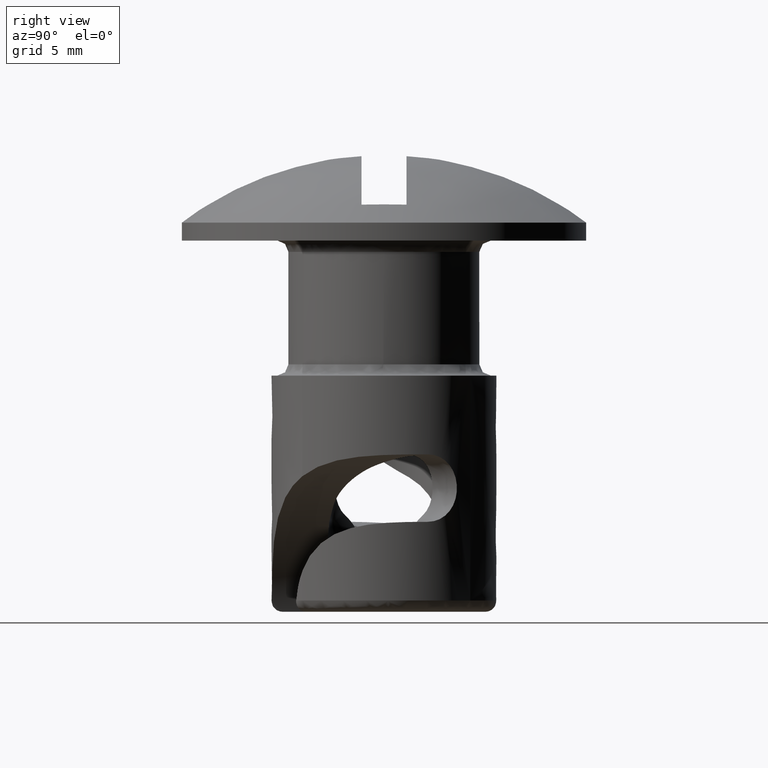
[diagram: clean part render]
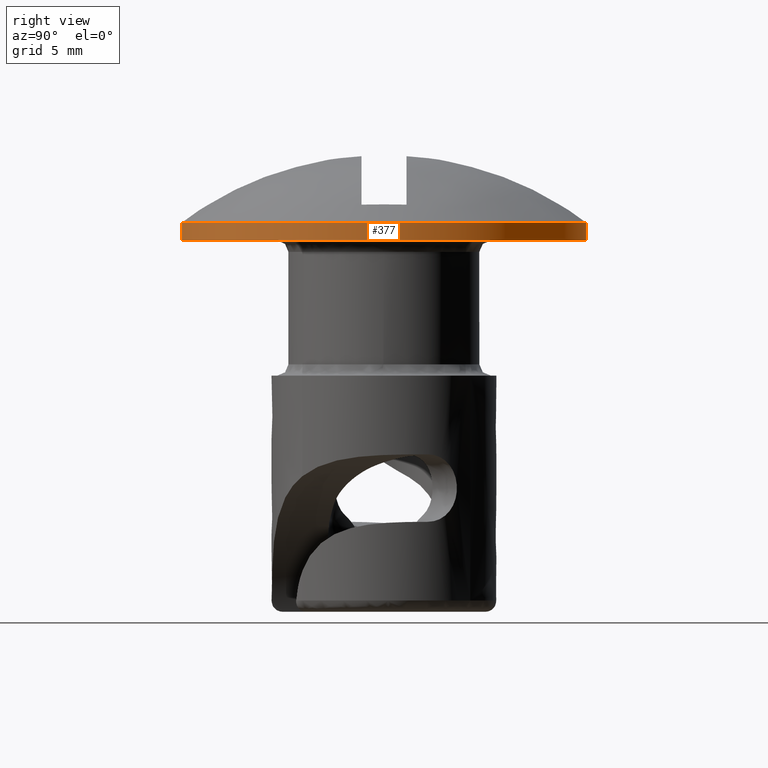
[diagram: same view with one face highlighted and labeled with its STEP entity id]
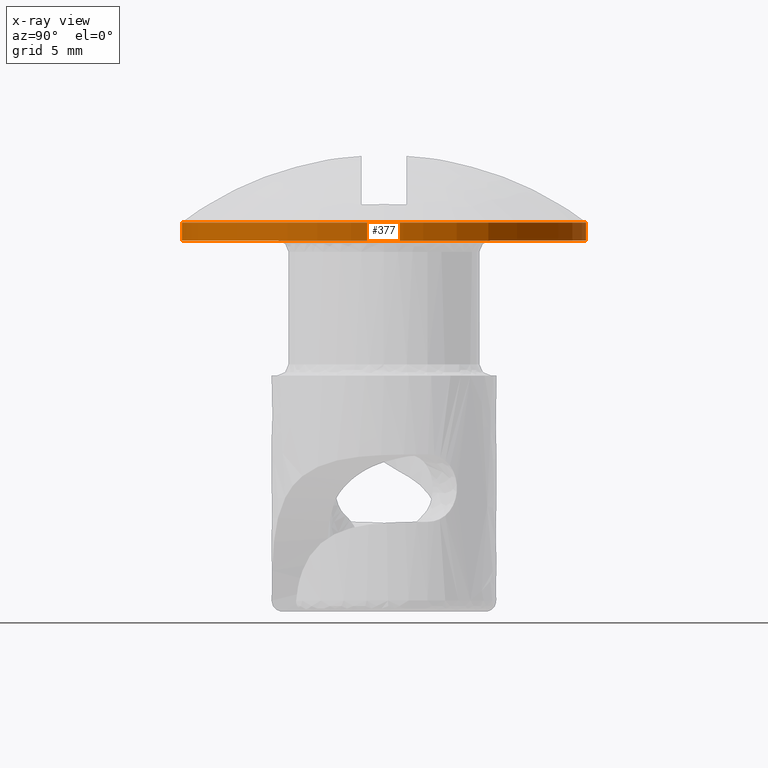
[diagram: x-ray of the same camera — body ghosted, the highlighted face saturated]
A machine part, right view. The second image highlights one B-rep face of the part: STEP entity #377.
The next image is the same camera in x-ray: the body ghosted, the highlighted face saturated — about 0% of this face is hidden behind the body in this view.
In plain terms, the highlighted face is a freeform B-spline surface patch.
Its self-contained STEP definition (entity closure, byte-faithful):
#275=CARTESIAN_POINT('',(-1.062308111910826,8.937085737272998,0.820003075000106));
#276=CARTESIAN_POINT('',(-0.806532557741799,8.967488539037451,0.820003075000106));
#277=CARTESIAN_POINT('',(-0.549436855813713,8.983213185796799,0.820003075000106));
#278=CARTESIAN_POINT('',(8.433776329983086,9.532650041610513,0.820003075000106));
#279=CARTESIAN_POINT('',(8.983213185796799,0.549436855813713,0.820003075000106));
#280=CARTESIAN_POINT('',(9.532650041610513,-8.433776329983086,0.820003075000106));
#281=CARTESIAN_POINT('',(0.549436855813713,-8.983213185796799,0.820003075000106));
#282=CARTESIAN_POINT('',(-1.062308111910826,8.937085737272998,-0.020500076875003));
#283=CARTESIAN_POINT('',(-0.806532557741799,8.967488539037451,-0.020500076875003));
#284=CARTESIAN_POINT('',(-0.549436855813713,8.983213185796799,-0.020500076875003));
#285=CARTESIAN_POINT('',(8.433776329983086,9.532650041610513,-0.020500076875003));
#286=CARTESIAN_POINT('',(8.983213185796799,0.549436855813713,-0.020500076875003));
#287=CARTESIAN_POINT('',(9.532650041610513,-8.433776329983086,-0.020500076875003));
#288=CARTESIAN_POINT('',(0.549436855813713,-8.983213185796799,-0.020500076875003));
#296=(BOUNDED_SURFACE()B_SPLINE_SURFACE(2,1,((#275,#282),(#276,#283),(#277,#284),(#278,#285),(#279,#286),(#280,#287),(#281,#288)),.UNSPECIFIED.,.F.,.F.,.U.)B_SPLINE_SURFACE_WITH_KNOTS((3,2,2,3),(2,2),(0.0,0.596467529817257,15.508155775248680,30.419844020680092),(0.0,1.0),.UNSPECIFIED.)GEOMETRIC_REPRESENTATION_ITEM()RATIONAL_B_SPLINE_SURFACE(((0.977505800795127,0.977505800795127),(0.988284271247462,0.988284271247462),(1.0,1.0),(0.707106781186548,0.707106781186548),(1.0,1.0),(0.707106781186548,0.707106781186548),(1.0,1.0)))REPRESENTATION_ITEM('')SURFACE());
#297=CARTESIAN_POINT('',(-1.062301609337486,8.937086510197609,-8.314378E-014));
#298=VERTEX_POINT('',#297);
#299=CARTESIAN_POINT('',(9.0,0.0,0.0));
#300=VERTEX_POINT('',#299);
#301=CARTESIAN_POINT('',(-1.062301609337486,8.937086510197608,-8.314378E-014));
#302=CARTESIAN_POINT('',(-0.533013791208688,9.000000000000002,0.0));
#303=CARTESIAN_POINT('',(0.0,9.0,0.0));
#304=CARTESIAN_POINT('',(9.0,9.0,0.0));
#305=CARTESIAN_POINT('',(9.0,0.0,0.0));
#313=(BOUNDED_CURVE()B_SPLINE_CURVE(2,(#301,#302,#303,#304,#305),.UNSPECIFIED.,.F.,.U.)B_SPLINE_CURVE_WITH_KNOTS((3,2,3),(0.229562596481464,0.250000000000000,0.500000000000000),.UNSPECIFIED.)CURVE()GEOMETRIC_REPRESENTATION_ITEM()RATIONAL_B_SPLINE_CURVE((0.956026995206066,0.976056092397066,1.0,0.707106781186547,1.0))REPRESENTATION_ITEM(''));
#314=EDGE_CURVE('',#298,#300,#313,.T.);
#315=ORIENTED_EDGE('',*,*,#314,.F.);
#316=CARTESIAN_POINT('',(-1.062301689583547,8.937086500659266,0.800003000000103));
#317=VERTEX_POINT('',#316);
#318=CARTESIAN_POINT('',(-1.062301689583547,8.937086500659266,0.800003000000103));
#319=CARTESIAN_POINT('',(-1.062301609337486,8.937086510197609,-8.314378E-014));
#320=QUASI_UNIFORM_CURVE('',1,(#318,#319),.UNSPECIFIED.,.F.,.U.);
#321=EDGE_CURVE('',#317,#298,#320,.T.);
#322=ORIENTED_EDGE('',*,*,#321,.F.);
#323=CARTESIAN_POINT('',(9.0,0.0,0.800003000000103));
#324=VERTEX_POINT('',#323);
#325=CARTESIAN_POINT('',(-1.062301689583547,8.937086500659266,0.800003000000103));
#326=CARTESIAN_POINT('',(-0.533013831755885,9.000000000000002,0.800003000000103));
#327=CARTESIAN_POINT('',(0.0,9.0,0.800003000000103));
#328=CARTESIAN_POINT('',(9.0,9.0,0.800003000000103));
#329=CARTESIAN_POINT('',(9.0,0.0,0.800003000000103));
#337=(BOUNDED_CURVE()B_SPLINE_CURVE(2,(#325,#326,#327,#328,#329),.UNSPECIFIED.,.F.,.U.)B_SPLINE_CURVE_WITH_KNOTS((3,2,3),(0.229562594963984,0.250000000000000,0.500000000000000),.UNSPECIFIED.)CURVE()GEOMETRIC_REPRESENTATION_ITEM()RATIONAL_B_SPLINE_CURVE((0.956026992231740,0.976056090619228,1.0,0.707106781186547,1.0))REPRESENTATION_ITEM(''));
#338=EDGE_CURVE('',#317,#324,#337,.T.);
#339=ORIENTED_EDGE('',*,*,#338,.T.);
#340=CARTESIAN_POINT('',(0.549431581206479,-8.983213508402491,0.800003000000103));
#341=VERTEX_POINT('',#340);
#342=CARTESIAN_POINT('',(9.0,0.0,0.800003000000103));
#343=CARTESIAN_POINT('',(9.000000000000002,-8.466359582569112,0.800003000000103));
#344=CARTESIAN_POINT('',(0.549431581206479,-8.983213508402491,0.800003000000103));
#352=(BOUNDED_CURVE()B_SPLINE_CURVE(2,(#342,#343,#344),.UNSPECIFIED.,.F.,.U.)B_SPLINE_CURVE_WITH_KNOTS((3,3),(0.500000000000000,0.739333063555006),.UNSPECIFIED.)CURVE()GEOMETRIC_REPRESENTATION_ITEM()RATIONAL_B_SPLINE_CURVE((1.0,0.719603874587559,0.976072258806423))REPRESENTATION_ITEM(''));
#353=EDGE_CURVE('',#324,#341,#352,.T.);
#354=ORIENTED_EDGE('',*,*,#353,.T.);
#355=CARTESIAN_POINT('',(0.549431515278102,-8.983213512434766,-1.288674E-013));
#356=VERTEX_POINT('',#355);
#357=CARTESIAN_POINT('',(0.549431581206479,-8.983213508402491,0.800003000000103));
#358=CARTESIAN_POINT('',(0.549431515278102,-8.983213512434766,-1.288674E-013));
#359=QUASI_UNIFORM_CURVE('',1,(#357,#358),.UNSPECIFIED.,.F.,.U.);
#360=EDGE_CURVE('',#341,#356,#359,.T.);
#361=ORIENTED_EDGE('',*,*,#360,.T.);
#362=CARTESIAN_POINT('',(9.0,0.0,0.0));
#363=CARTESIAN_POINT('',(9.0,-8.466359644820372,0.0));
#364=CARTESIAN_POINT('',(0.549431515278102,-8.983213512434766,-1.288674E-013));
#372=(BOUNDED_CURVE()B_SPLINE_CURVE(2,(#362,#363,#364),.UNSPECIFIED.,.F.,.U.)B_SPLINE_CURVE_WITH_KNOTS((3,3),(0.500000000000000,0.739333064821338),.UNSPECIFIED.)CURVE()GEOMETRIC_REPRESENTATION_ITEM()RATIONAL_B_SPLINE_CURVE((1.0,0.719603873103959,0.976072261520416))REPRESENTATION_ITEM(''));
#373=EDGE_CURVE('',#300,#356,#372,.T.);
#374=ORIENTED_EDGE('',*,*,#373,.F.);
#375=EDGE_LOOP('',(#315,#322,#339,#354,#361,#374));
#376=FACE_OUTER_BOUND('',#375,.T.);
#377=ADVANCED_FACE('',(#376),#296,.T.);